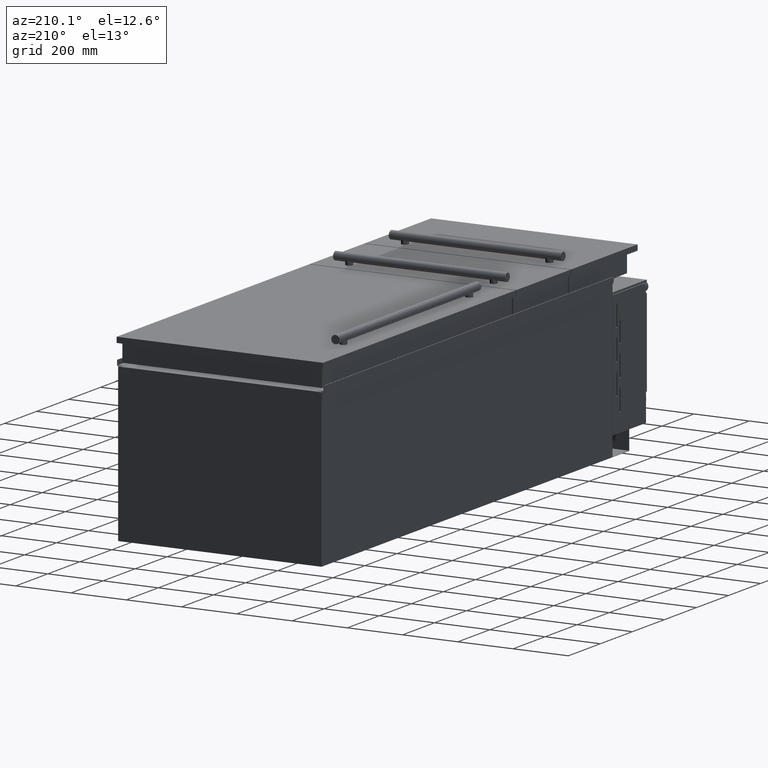
[diagram: clean part render]
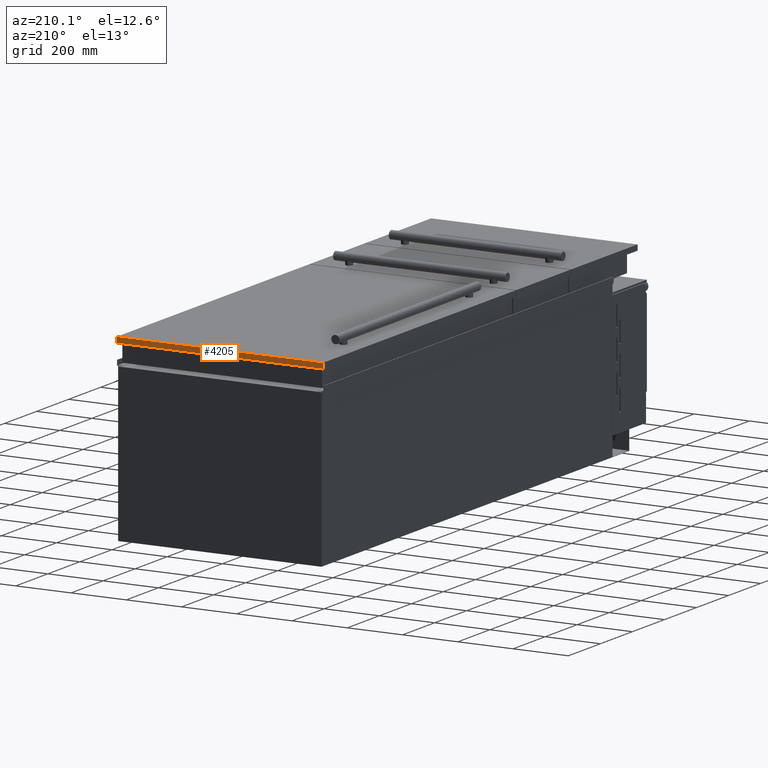
[diagram: same view with one face highlighted and labeled with its STEP entity id]
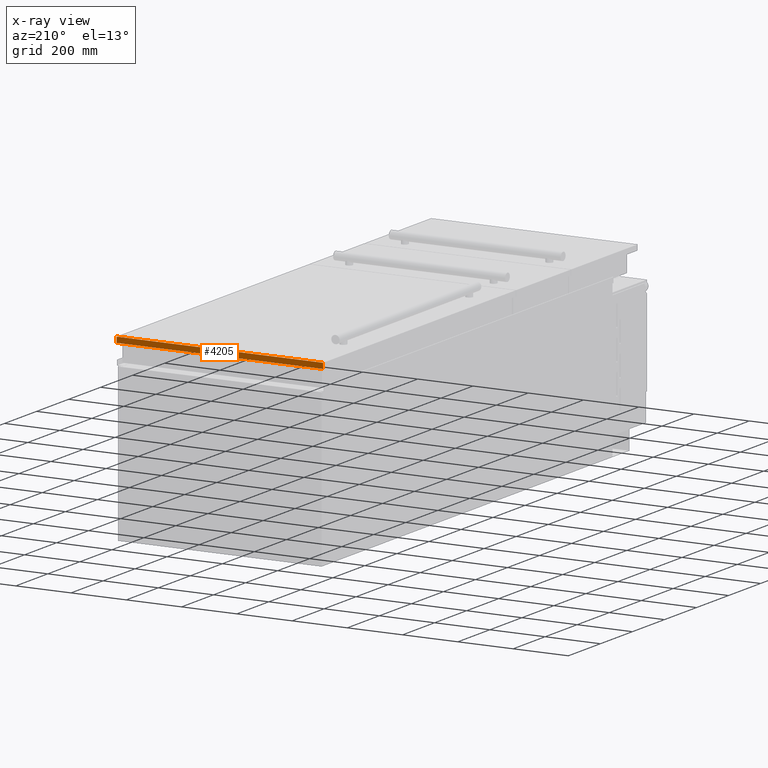
[diagram: x-ray of the same camera — body ghosted, the highlighted face saturated]
A machine part, auxiliary view. The second image highlights one B-rep face of the part: STEP entity #4205.
The next image is the same camera in x-ray: the body ghosted, the highlighted face saturated — about 0% of this face is hidden behind the body in this view.
In plain terms, the highlighted planar face has unit normal (0, -1, 0).
Its self-contained STEP definition (entity closure, byte-faithful):
#182 = LINE ( 'NONE', #13665, #4263 ) ;
#290 = ORIENTED_EDGE ( 'NONE', *, *, #14128, .F. ) ;
#653 = LINE ( 'NONE', #9860, #10626 ) ;
#804 = CARTESIAN_POINT ( 'NONE',  ( -373.5000000000000000, 1015.849999999999900, 355.0000000000000600 ) ) ;
#1501 = LINE ( 'NONE', #5935, #1826 ) ;
#1826 = VECTOR ( 'NONE', #12601, 1000.000000000000000 ) ;
#1922 = AXIS2_PLACEMENT_3D ( 'NONE', #7103, #6040, #6126 ) ;
#2234 = EDGE_CURVE ( 'NONE', #2627, #9833, #1501, .T. ) ;
#2465 = EDGE_LOOP ( 'NONE', ( #12197, #13098, #290, #6546 ) ) ;
#2627 = VERTEX_POINT ( 'NONE', #13301 ) ;
#3295 = CARTESIAN_POINT ( 'NONE',  ( -373.5000000000000000, 1015.849999999999900, 375.0000000000000600 ) ) ;
#3692 = CARTESIAN_POINT ( 'NONE',  ( 373.5000000000000000, 1015.849999999999900, 355.0000000000000600 ) ) ;
#4205 = ADVANCED_FACE ( 'NONE', ( #8679 ), #5993, .F. ) ;
#4263 = VECTOR ( 'NONE', #8192, 1000.000000000000000 ) ;
#4547 = LINE ( 'NONE', #3295, #5575 ) ;
#5575 = VECTOR ( 'NONE', #14048, 1000.000000000000000 ) ;
#5935 = CARTESIAN_POINT ( 'NONE',  ( -373.5000000000000000, 1015.849999999999900, 375.0000000000000600 ) ) ;
#5993 = PLANE ( 'NONE',  #1922 ) ;
#6040 = DIRECTION ( 'NONE',  ( 0.0000000000000000000, -1.000000000000000000, 0.0000000000000000000 ) ) ;
#6123 = VERTEX_POINT ( 'NONE', #3692 ) ;
#6126 = DIRECTION ( 'NONE',  ( 0.0000000000000000000, -0.0000000000000000000, -1.000000000000000000 ) ) ;
#6546 = ORIENTED_EDGE ( 'NONE', *, *, #9521, .T. ) ;
#7103 = CARTESIAN_POINT ( 'NONE',  ( -373.5000000000000000, 1015.849999999999900, 375.0000000000000600 ) ) ;
#7290 = EDGE_CURVE ( 'NONE', #6123, #9833, #653, .T. ) ;
#8192 = DIRECTION ( 'NONE',  ( -0.0000000000000000000, -0.0000000000000000000, -1.000000000000000000 ) ) ;
#8679 = FACE_OUTER_BOUND ( 'NONE', #2465, .T. ) ;
#9354 = VERTEX_POINT ( 'NONE', #14200 ) ;
#9521 = EDGE_CURVE ( 'NONE', #9354, #6123, #182, .T. ) ;
#9822 = DIRECTION ( 'NONE',  ( -1.000000000000000000, -0.0000000000000000000, -0.0000000000000000000 ) ) ;
#9833 = VERTEX_POINT ( 'NONE', #804 ) ;
#9860 = CARTESIAN_POINT ( 'NONE',  ( -373.5000000000000000, 1015.849999999999900, 355.0000000000000600 ) ) ;
#10626 = VECTOR ( 'NONE', #9822, 1000.000000000000000 ) ;
#12197 = ORIENTED_EDGE ( 'NONE', *, *, #7290, .T. ) ;
#12601 = DIRECTION ( 'NONE',  ( -0.0000000000000000000, -0.0000000000000000000, -1.000000000000000000 ) ) ;
#13098 = ORIENTED_EDGE ( 'NONE', *, *, #2234, .F. ) ;
#13301 = CARTESIAN_POINT ( 'NONE',  ( -373.5000000000000000, 1015.849999999999900, 375.0000000000000600 ) ) ;
#13665 = CARTESIAN_POINT ( 'NONE',  ( 373.5000000000000000, 1015.849999999999900, 375.0000000000000600 ) ) ;
#14048 = DIRECTION ( 'NONE',  ( -1.000000000000000000, -0.0000000000000000000, -0.0000000000000000000 ) ) ;
#14128 = EDGE_CURVE ( 'NONE', #9354, #2627, #4547, .T. ) ;
#14200 = CARTESIAN_POINT ( 'NONE',  ( 373.5000000000000000, 1015.849999999999900, 375.0000000000000600 ) ) ;